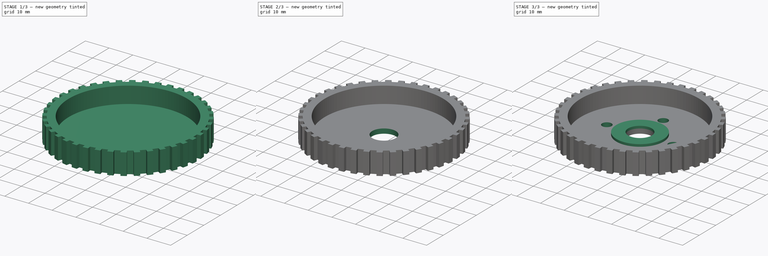
[diagram: build sequence overview — one tinted view per stage of 3, left to right]
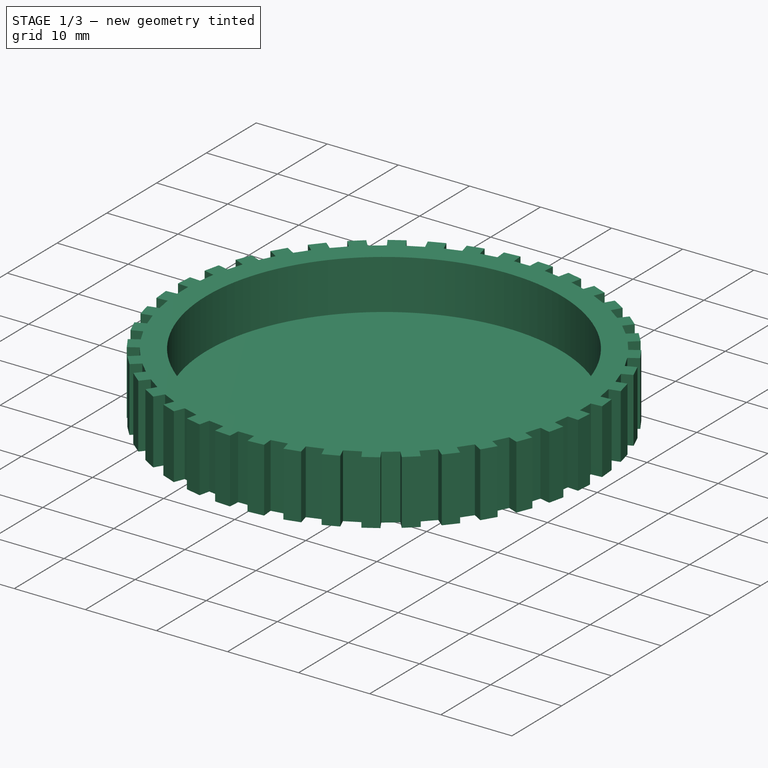
[diagram: stage 1 of 3 — iso view after this stage's code; geometry added in this stage tinted green]
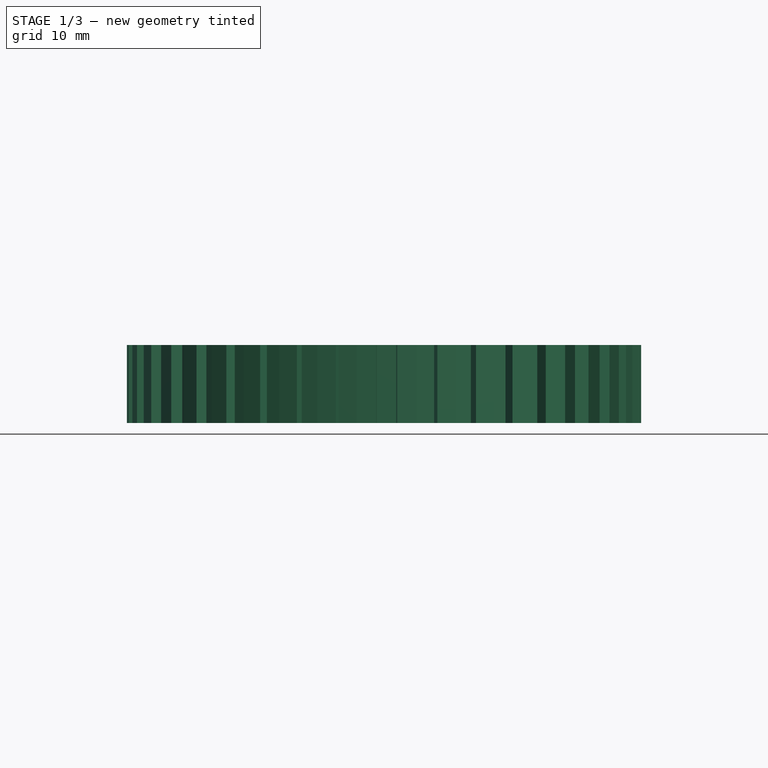
[diagram: stage 1 of 3 — front view after this stage's code; geometry added in this stage tinted green]
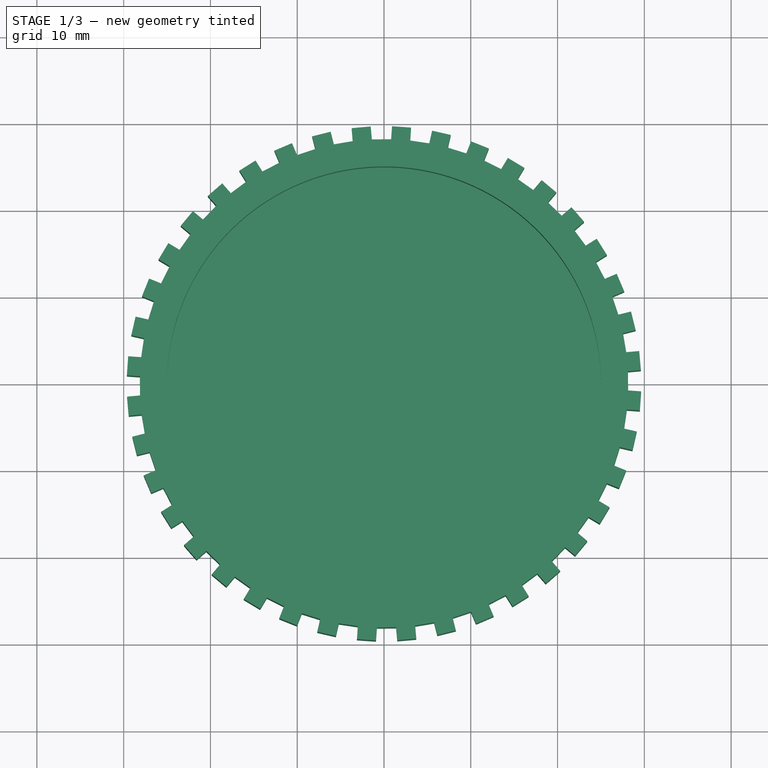
[diagram: stage 1 of 3 — top view after this stage's code; geometry added in this stage tinted green]
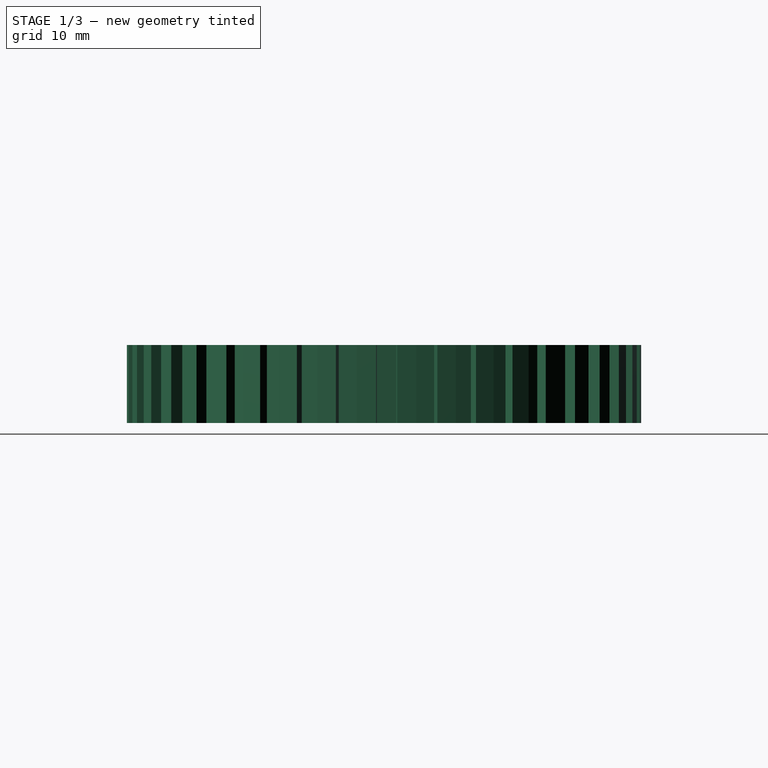
[diagram: stage 1 of 3 — right view after this stage's code; geometry added in this stage tinted green]
FCSTD DOCUMENT  (FreeCAD 0.19R24276 (Git))
Label: G1_d56_40t_from_p8
License: All rights reserved
LicenseURL: http://en.wikipedia.org/wiki/All_rights_reserved
objects: Sketcher::SketchObject×5, PartDesign::Pocket×3, PartDesign::Pad×2, PartDesign::Body×1
note: 16 computed .brp shape members not serialized (recipe doc carries the construction recipe); baked Part::Feature solids carry a one-line shape summary decoded from their .brp

FEATURE [Sketcher::SketchObject] Sketch
  FullyConstrained = false
  MapMode = 5
  Support = -> [XY_Plane]
  sketch-geometry (281):
    g0: Circle CenterX=0 CenterY=0 CenterZ=0 NormalX=0 NormalY=0 NormalZ=1 AngleXU=0 Radius=28.1239
    g1: LineSegment StartX=-25.682 StartY=11.5162 StartZ=0 EndX=-26.503 EndY=9.47509 EndZ=0
    g2: LineSegment StartX=-26.503 StartY=9.47509 StartZ=0 EndX=-27.8947 EndY=10.0349 EndZ=0
    g3: LineSegment StartX=-27.8947 StartY=10.0349 StartZ=0 EndX=-27.0736 EndY=12.0759 EndZ=0
    g4: LineSegment StartX=-27.0736 StartY=12.0759 StartZ=0 EndX=-25.682 EndY=11.5162 EndZ=0
    g5: GeomPoint X=-26.0925 Y=10.4956 Z=0
    g6: LineSegment StartX=-27.1673 StartY=7.35682 StartZ=0 EndX=-27.659 EndY=5.21245 EndZ=0
    g7: LineSegment StartX=-27.659 StartY=5.21245 StartZ=0 EndX=-29.121 EndY=5.54764 EndZ=0
    g8: LineSegment StartX=-29.121 StartY=5.54764 StartZ=0 EndX=-28.6294 EndY=7.69201 EndZ=0
    g9: LineSegment StartX=-28.6294 StartY=7.69201 StartZ=0 EndX=-27.1673 EndY=7.35682 EndZ=0
    g10: GeomPoint X=-27.4132 Y=6.28463 Z=0
    g11: LineSegment StartX=0 StartY=0 StartZ=0 EndX=-27.4132 EndY=6.28463 EndZ=0
    g12: LineSegment StartX=-26.0925 StartY=10.4956 StartZ=0 EndX=0 EndY=0 EndZ=0
    g13: LineSegment StartX=0 StartY=0 StartZ=0 EndX=-11.0287 EndY=25.8717 EndZ=0
    g14: LineSegment StartX=-5.77874 StartY=27.5462 StartZ=0 EndX=-7.91258 EndY=27.0107 EndZ=0
    g15: LineSegment StartX=-7.91258 StartY=27.0107 StartZ=0 EndX=-8.27769 EndY=28.4656 EndZ=0
    g16: LineSegment StartX=-8.27769 StartY=28.4656 StartZ=0 EndX=-6.14386 EndY=29.0011 EndZ=0
    g17: LineSegment StartX=-6.14386 StartY=29.0011 StartZ=0 EndX=-5.77874 EndY=27.5462 EndZ=0
    g18: GeomPoint X=-6.84566 Y=27.2785 Z=0
    g19: LineSegment StartX=-10.0168 StartY=26.3031 StartZ=0 EndX=-12.0406 EndY=25.4404 EndZ=0
    g20: LineSegment StartX=-12.0406 StartY=25.4404 StartZ=0 EndX=-12.6288 EndY=26.8202 EndZ=0
    g21: LineSegment StartX=-12.6288 StartY=26.8202 StartZ=0 EndX=-10.605 EndY=27.6829 EndZ=0
    g22: LineSegment StartX=-10.605 StartY=27.6829 StartZ=0 EndX=-10.0168 EndY=26.3031 EndZ=0
    g23: GeomPoint X=-11.0287 Y=25.8717 Z=0
    g24: LineSegment StartX=-15.8721 StartY=23.2436 StartZ=0 EndX=-14.0082 EndY=24.4123 EndZ=0
    g25: LineSegment StartX=-14.0082 StartY=24.4123 StartZ=0 EndX=-14.805 EndY=25.6831 EndZ=0
    g26: LineSegment StartX=-14.805 StartY=25.6831 StartZ=0 EndX=-16.6689 EndY=24.5144 EndZ=0
    g27: LineSegment StartX=-16.6689 StartY=24.5144 StartZ=0 EndX=-15.8721 EndY=23.2436 EndZ=0
    g28: GeomPoint X=-14.9401 Y=23.8279 Z=0
    g29: LineSegment StartX=-24.6945 StartY=13.5044 StartZ=0 EndX=-23.5643 EndY=15.3919 EndZ=0
    g30: LineSegment StartX=-23.5643 StartY=15.3919 StartZ=0 EndX=-24.8512 EndY=16.1625 EndZ=0
    g31: LineSegment StartX=-24.8512 StartY=16.1625 StartZ=0 EndX=-25.9814 EndY=14.275 EndZ=0
    g32: LineSegment StartX=-25.9814 StartY=14.275 StartZ=0 EndX=-24.6945 EndY=13.5044 EndZ=0
    g33: GeomPoint X=-24.1294 Y=14.4482 Z=0
    g34: LineSegment StartX=-22.2779 StartY=17.2012 StartZ=0 EndX=-20.8664 EndY=18.8887 EndZ=0
    g35: LineSegment StartX=-20.8664 StartY=18.8887 StartZ=0 EndX=-22.0169 EndY=19.8511 EndZ=0
    g36: LineSegment StartX=-22.0169 StartY=19.8511 StartZ=0 EndX=-23.4285 EndY=18.1637 EndZ=0
    g37: LineSegment StartX=-23.4285 StartY=18.1637 StartZ=0 EndX=-22.2779 EndY=17.2012 EndZ=0
    g38: GeomPoint X=-21.5721 Y=18.045 Z=0
    g39: LineSegment StartX=-17.6546 StartY=21.9204 StartZ=0 EndX=-19.3128 EndY=20.4745 EndZ=0
    g40: LineSegment StartX=-19.3128 StartY=20.4745 StartZ=0 EndX=-20.2986 EndY=21.605 EndZ=0
    g41: LineSegment StartX=-20.2986 StartY=21.605 StartZ=0 EndX=-18.6404 EndY=23.0509 EndZ=0
    g42: LineSegment StartX=-18.6404 StartY=23.0509 StartZ=0 EndX=-17.6546 EndY=21.9204 EndZ=0
    g43: GeomPoint X=-18.4837 Y=21.1974 Z=0
    g44: LineSegment StartX=0 StartY=0 StartZ=0 EndX=-14.9401 EndY=23.8279 EndZ=0
    g45: LineSegment StartX=0 StartY=0 StartZ=0 EndX=-18.4837 EndY=21.1974 EndZ=0
    g46: LineSegment StartX=0 StartY=0 StartZ=0 EndX=-21.5721 EndY=18.045 EndZ=0
    g47: LineSegment StartX=-24.1294 StartY=14.4482 StartZ=0 EndX=0 EndY=0 EndZ=0
    g48: LineSegment StartX=-6.84566 StartY=27.2785 StartZ=0 EndX=0 EndY=0 EndZ=0
    g49: LineSegment StartX=27.9837 StartY=-3.01633 StartZ=0 EndX=28.1338 EndY=-0.821461 EndZ=0
    g50: LineSegment StartX=28.1338 StartY=-0.821461 StartZ=0 EndX=29.6303 EndY=-0.923805 EndZ=0
    g51: LineSegment StartX=29.6303 StartY=-0.923805 StartZ=0 EndX=29.4802 EndY=-3.11868 EndZ=0
    g52: LineSegment StartX=29.4802 StartY=-3.11868 StartZ=0 EndX=27.9837 EndY=-3.01633 EndZ=0
    g53: GeomPoint X=28.0588 Y=-1.9189 Z=0
    g54: LineSegment StartX=28.1111 StartY=1.39842 StartZ=0 EndX=27.916 EndY=3.58975 EndZ=0
    g55: LineSegment StartX=27.916 StartY=3.58975 StartZ=0 EndX=29.4101 EndY=3.72278 EndZ=0
    g56: LineSegment StartX=29.4101 StartY=3.72278 StartZ=0 EndX=29.6052 EndY=1.53144 EndZ=0
    g57: LineSegment StartX=29.6052 StartY=1.53144 StartZ=0 EndX=28.1111 EndY=1.39842 EndZ=0
    g58: GeomPoint X=28.0135 Y=2.49409 Z=0
    g59: LineSegment StartX=27.0107 StartY=7.91258 StartZ=0 EndX=27.5462 EndY=5.77874 EndZ=0
    g60: LineSegment StartX=27.5462 StartY=5.77874 StartZ=0 EndX=29.0011 EndY=6.14386 EndZ=0
    g61: LineSegment StartX=29.0011 StartY=6.14386 StartZ=0 EndX=28.4656 EndY=8.27769 EndZ=0
    g62: LineSegment StartX=28.4656 StartY=8.27769 StartZ=0 EndX=27.0107 EndY=7.91258 EndZ=0
    g63: GeomPoint X=27.2785 Y=6.84566 Z=0
    g64: LineSegment StartX=20.4745 StartY=19.3128 StartZ=0 EndX=21.9204 EndY=17.6546 EndZ=0
    g65: LineSegment StartX=21.9204 StartY=17.6546 StartZ=0 EndX=23.0509 EndY=18.6404 EndZ=0
    g66: LineSegment StartX=23.0509 StartY=18.6404 StartZ=0 EndX=21.605 EndY=20.2986 EndZ=0
    g67: LineSegment StartX=21.605 StartY=20.2986 StartZ=0 EndX=20.4745 EndY=19.3128 EndZ=0
    g68: GeomPoint X=21.1974 Y=18.4837 Z=0
    g69: LineSegment StartX=23.2436 StartY=15.8721 StartZ=0 EndX=24.4123 EndY=14.0082 EndZ=0
    g70: LineSegment StartX=24.4123 StartY=14.0082 StartZ=0 EndX=25.6831 EndY=14.805 EndZ=0
    g71: LineSegment StartX=25.6831 StartY=14.805 StartZ=0 EndX=24.5144 EndY=16.6689 EndZ=0
    g72: LineSegment StartX=24.5144 StartY=16.6689 StartZ=0 EndX=23.2436 EndY=15.8721 EndZ=0
    g73: GeomPoint X=23.8279 Y=14.9401 Z=0
    g74: LineSegment StartX=26.3031 StartY=10.0168 StartZ=0 EndX=25.4404 EndY=12.0406 EndZ=0
    g75: LineSegment StartX=25.4404 StartY=12.0406 StartZ=0 EndX=26.8202 EndY=12.6288 EndZ=0
    g76: LineSegment StartX=26.8202 StartY=12.6288 StartZ=0 EndX=27.6829 EndY=10.605 EndZ=0
    g77: LineSegment StartX=27.6829 StartY=10.605 StartZ=0 EndX=26.3031 EndY=10.0168 EndZ=0
    g78: GeomPoint X=25.8717 Y=11.0287 Z=0
    g79: LineSegment StartX=-3.58975 StartY=27.916 StartZ=0 EndX=-1.39842 EndY=28.1111 EndZ=0
    g80: LineSegment StartX=-1.39842 StartY=28.1111 StartZ=0 EndX=-1.53144 EndY=29.6052 EndZ=0
    g81: LineSegment StartX=-1.53144 StartY=29.6052 StartZ=0 EndX=-3.72278 EndY=29.4101 EndZ=0
    g82: LineSegment StartX=-3.72278 StartY=29.4101 StartZ=0 EndX=-3.58975 EndY=27.916 EndZ=0
    g83: GeomPoint X=-2.49409 Y=28.0135 Z=0
    g84: LineSegment StartX=0.821461 StartY=28.1338 StartZ=0 EndX=3.01633 EndY=27.9837 EndZ=0
    g85: LineSegment StartX=3.01633 StartY=27.9837 StartZ=0 EndX=3.11868 EndY=29.4802 EndZ=0
    g86: LineSegment StartX=3.11868 StartY=29.4802 StartZ=0 EndX=0.923805 EndY=29.6303 EndZ=0
    g87: LineSegment StartX=0.923805 StartY=29.6303 StartZ=0 EndX=0.821461 EndY=28.1338 EndZ=0
    g88: GeomPoint X=1.9189 Y=28.0588 Z=0
    g89: LineSegment StartX=7.35682 StartY=27.1673 StartZ=0 EndX=5.21245 EndY=27.659 EndZ=0
    g90: LineSegment StartX=5.21245 StartY=27.659 StartZ=0 EndX=5.54764 EndY=29.121 EndZ=0
    g91: LineSegment StartX=5.54764 StartY=29.121 StartZ=0 EndX=7.69201 EndY=28.6294 EndZ=0
    g92: LineSegment StartX=7.69201 StartY=28.6294 StartZ=0 EndX=7.35682 EndY=27.1673 EndZ=0
    g93: GeomPoint X=6.28463 Y=27.4132 Z=0
    g94: LineSegment StartX=18.8887 StartY=20.8664 StartZ=0 EndX=17.2012 EndY=22.2779 EndZ=0
    g95: LineSegment StartX=17.2012 StartY=22.2779 StartZ=0 EndX=18.1637 EndY=23.4285 EndZ=0
    g96: LineSegment StartX=18.1637 StartY=23.4285 StartZ=0 EndX=19.8511 EndY=22.0169 EndZ=0
    g97: LineSegment StartX=19.8511 StartY=22.0169 StartZ=0 EndX=18.8887 EndY=20.8664 EndZ=0
    g98: GeomPoint X=18.045 Y=21.5721 Z=0
    g99: LineSegment StartX=15.3919 StartY=23.5643 StartZ=0 EndX=13.5044 EndY=24.6945 EndZ=0
    g100: LineSegment StartX=13.5044 StartY=24.6945 StartZ=0 EndX=14.275 EndY=25.9814 EndZ=0
    g101: LineSegment StartX=14.275 StartY=25.9814 StartZ=0 EndX=16.1625 EndY=24.8512 EndZ=0
    g102: LineSegment StartX=16.1625 StartY=24.8512 StartZ=0 EndX=15.3919 EndY=23.5643 EndZ=0
    g103: GeomPoint X=14.4482 Y=24.1294 Z=0
    g104: LineSegment StartX=9.47509 StartY=26.503 StartZ=0 EndX=11.5162 EndY=25.682 EndZ=0
    g105: LineSegment StartX=11.5162 StartY=25.682 StartZ=0 EndX=12.0759 EndY=27.0736 EndZ=0
    g106: LineSegment StartX=12.0759 StartY=27.0736 StartZ=0 EndX=10.0349 EndY=27.8947 EndZ=0
    g107: LineSegment StartX=10.0349 StartY=27.8947 StartZ=0 EndX=9.47509 EndY=26.503 EndZ=0
    g108: GeomPoint X=10.4956 Y=26.0925 Z=0
    g109: LineSegment StartX=0 StartY=0 StartZ=0 EndX=28.0588 EndY=-1.9189 EndZ=0
    g110: LineSegment StartX=0 StartY=0 StartZ=0 EndX=28.0135 EndY=2.49409 EndZ=0
    g111: LineSegment StartX=0 StartY=0 StartZ=0 EndX=27.2785 EndY=6.84566 EndZ=0
    g112: LineSegment StartX=0 StartY=0 StartZ=0 EndX=23.8279 EndY=14.9401 EndZ=0
    g113: LineSegment StartX=0 StartY=0 StartZ=0 EndX=25.8717 EndY=11.0287 EndZ=0
    g114: LineSegment StartX=21.1974 StartY=18.4837 StartZ=0 EndX=0 EndY=0 EndZ=0
    g115: LineSegment StartX=0 StartY=0 StartZ=0 EndX=10.4956 EndY=26.0925 EndZ=0
    g116: LineSegment StartX=0 StartY=0 StartZ=0 EndX=14.4482 EndY=24.1294 EndZ=0
    g117: LineSegment StartX=18.045 StartY=21.5721 StartZ=0 EndX=0 EndY=0 EndZ=0
    g118: LineSegment StartX=0 StartY=0 StartZ=0 EndX=1.9189 EndY=28.0588 EndZ=0
    g119: LineSegment StartX=0 StartY=0 StartZ=0 EndX=6.28463 EndY=27.4132 EndZ=0
    g120: LineSegment StartX=-2.49409 StartY=28.0135 StartZ=0 EndX=0 EndY=0 EndZ=0
    g121: LineSegment StartX=-27.916 StartY=-3.58975 StartZ=0 EndX=-28.1111 EndY=-1.39842 EndZ=0
    g122: LineSegment StartX=-28.1111 StartY=-1.39842 StartZ=0 EndX=-29.6052 EndY=-1.53144 EndZ=0
    g123: LineSegment StartX=-29.6052 StartY=-1.53144 StartZ=0 EndX=-29.4101 EndY=-3.72278 EndZ=0
    g124: LineSegment StartX=-29.4101 StartY=-3.72278 StartZ=0 EndX=-27.916 EndY=-3.58975 EndZ=0
    g125: GeomPoint X=-28.0135 Y=-2.49409 Z=0
    g126: LineSegment StartX=-28.1338 StartY=0.821461 StartZ=0 EndX=-27.9837 EndY=3.01633 EndZ=0
    g127: LineSegment StartX=-27.9837 StartY=3.01633 StartZ=0 EndX=-29.4802 EndY=3.11868 EndZ=0
    g128: LineSegment StartX=-29.4802 StartY=3.11868 StartZ=0 EndX=-29.6303 EndY=0.923805 EndZ=0
    g129: LineSegment StartX=-29.6303 StartY=0.923805 StartZ=0 EndX=-28.1338 EndY=0.821461 EndZ=0
    g130: GeomPoint X=-28.0588 Y=1.9189 Z=0
    g131: LineSegment StartX=0 StartY=0 StartZ=0 EndX=-28.0588 EndY=1.9189 EndZ=0
    g132: LineSegment StartX=-28.0135 StartY=-2.49409 StartZ=0 EndX=0 EndY=0 EndZ=0
    g133: LineSegment StartX=0 StartY=0 StartZ=0 EndX=-18.045 EndY=-21.5721 EndZ=0
    g134: LineSegment StartX=-13.5044 StartY=-24.6945 StartZ=0 EndX=-15.3919 EndY=-23.5643 EndZ=0
    g135: LineSegment StartX=-15.3919 StartY=-23.5643 StartZ=0 EndX=-16.1625 EndY=-24.8512 EndZ=0
    g136: LineSegment StartX=-16.1625 StartY=-24.8512 StartZ=0 EndX=-14.275 EndY=-25.9814 EndZ=0
    g137: LineSegment StartX=-14.275 StartY=-25.9814 StartZ=0 EndX=-13.5044 EndY=-24.6945 EndZ=0
    g138: GeomPoint X=-14.4482 Y=-24.1294 Z=0
    g139: LineSegment StartX=-17.2012 StartY=-22.2779 StartZ=0 EndX=-18.8887 EndY=-20.8664 EndZ=0
    g140: LineSegment StartX=-18.8887 StartY=-20.8664 StartZ=0 EndX=-19.8511 EndY=-22.0169 EndZ=0
    g141: LineSegment StartX=-19.8511 StartY=-22.0169 StartZ=0 EndX=-18.1637 EndY=-23.4285 EndZ=0
    g142: LineSegment StartX=-18.1637 StartY=-23.4285 StartZ=0 EndX=-17.2012 EndY=-22.2779 EndZ=0
    g143: GeomPoint X=-18.045 Y=-21.5721 Z=0
    g144: LineSegment StartX=-21.9204 StartY=-17.6546 StartZ=0 EndX=-20.4745 EndY=-19.3128 EndZ=0
    g145: LineSegment StartX=-20.4745 StartY=-19.3128 StartZ=0 EndX=-21.605 EndY=-20.2986 EndZ=0
    g146: LineSegment StartX=-21.605 StartY=-20.2986 StartZ=0 EndX=-23.0509 EndY=-18.6404 EndZ=0
    g147: LineSegment StartX=-23.0509 StartY=-18.6404 StartZ=0 EndX=-21.9204 EndY=-17.6546 EndZ=0
    g148: GeomPoint X=-21.1974 Y=-18.4837 Z=0
    g149: LineSegment StartX=-27.5462 StartY=-5.77874 StartZ=0 EndX=-27.0107 EndY=-7.91258 EndZ=0
    g150: LineSegment StartX=-27.0107 StartY=-7.91258 StartZ=0 EndX=-28.4656 EndY=-8.27769 EndZ=0
    g151: LineSegment StartX=-28.4656 StartY=-8.27769 StartZ=0 EndX=-29.0011 EndY=-6.14386 EndZ=0
    g152: LineSegment StartX=-29.0011 StartY=-6.14386 StartZ=0 EndX=-27.5462 EndY=-5.77874 EndZ=0
    g153: GeomPoint X=-27.2785 Y=-6.84566 Z=0
    g154: LineSegment StartX=-26.3031 StartY=-10.0168 StartZ=0 EndX=-25.4404 EndY=-12.0406 EndZ=0
    g155: LineSegment StartX=-25.4404 StartY=-12.0406 StartZ=0 EndX=-26.8202 EndY=-12.6288 EndZ=0
    g156: LineSegment StartX=-26.8202 StartY=-12.6288 StartZ=0 EndX=-27.6829 EndY=-10.605 EndZ=0
    g157: LineSegment StartX=-27.6829 StartY=-10.605 StartZ=0 EndX=-26.3031 EndY=-10.0168 EndZ=0
    g158: GeomPoint X=-25.8717 Y=-11.0287 Z=0
    g159: LineSegment StartX=-23.2436 StartY=-15.8721 StartZ=0 EndX=-24.4123 EndY=-14.0082 EndZ=0
    g160: LineSegment StartX=-24.4123 StartY=-14.0082 StartZ=0 EndX=-25.6831 EndY=-14.805 EndZ=0
    g161: LineSegment StartX=-25.6831 StartY=-14.805 StartZ=0 EndX=-24.5144 EndY=-16.6689 EndZ=0
    g162: LineSegment StartX=-24.5144 StartY=-16.6689 StartZ=0 EndX=-23.2436 EndY=-15.8721 EndZ=0
    g163: GeomPoint X=-23.8279 Y=-14.9401 Z=0
    g164: LineSegment StartX=0 StartY=0 StartZ=0 EndX=-21.1974 EndY=-18.4837 EndZ=0
    g165: LineSegment StartX=0 StartY=0 StartZ=0 EndX=-23.8279 EndY=-14.9401 EndZ=0
    g166: LineSegment StartX=0 StartY=0 StartZ=0 EndX=-25.8717 EndY=-11.0287 EndZ=0
    g167: LineSegment StartX=-27.2785 StartY=-6.84566 StartZ=0 EndX=0 EndY=0 EndZ=0
    g168: LineSegment StartX=-14.4482 StartY=-24.1294 StartZ=0 EndX=1.8e-15 EndY=0 EndZ=0
    g169: LineSegment StartX=27.659 StartY=-5.21245 StartZ=0 EndX=27.1673 EndY=-7.35682 EndZ=0
    g170: LineSegment StartX=27.1673 StartY=-7.35682 StartZ=0 EndX=28.6294 EndY=-7.69201 EndZ=0
    g171: LineSegment StartX=28.6294 StartY=-7.69201 StartZ=0 EndX=29.121 EndY=-5.54764 EndZ=0
    g172: LineSegment StartX=29.121 StartY=-5.54764 StartZ=0 EndX=27.659 EndY=-5.21245 EndZ=0
    g173: GeomPoint X=27.4132 Y=-6.28463 Z=0
    g174: LineSegment StartX=26.503 StartY=-9.47509 StartZ=0 EndX=25.682 EndY=-11.5162 EndZ=0
    g175: LineSegment StartX=25.682 StartY=-11.5162 StartZ=0 EndX=27.0736 EndY=-12.0759 EndZ=0
    g176: LineSegment StartX=27.0736 StartY=-12.0759 StartZ=0 EndX=27.8947 EndY=-10.0349 EndZ=0
    g177: LineSegment StartX=27.8947 StartY=-10.0349 StartZ=0 EndX=26.503 EndY=-9.47509 EndZ=0
    g178: GeomPoint X=26.0925 Y=-10.4956 Z=0
    g179: LineSegment StartX=23.5643 StartY=-15.3919 StartZ=0 EndX=24.6945 EndY=-13.5044 EndZ=0
    g180: LineSegment StartX=24.6945 StartY=-13.5044 StartZ=0 EndX=25.9814 EndY=-14.275 EndZ=0
    g181: LineSegment StartX=25.9814 StartY=-14.275 StartZ=0 EndX=24.8512 EndY=-16.1625 EndZ=0
    g182: LineSegment StartX=24.8512 StartY=-16.1625 StartZ=0 EndX=23.5643 EndY=-15.3919 EndZ=0
    g183: GeomPoint X=24.1294 Y=-14.4482 Z=0
    g184: LineSegment StartX=14.0082 StartY=-24.4123 StartZ=0 EndX=15.8721 EndY=-23.2436 EndZ=0
    g185: LineSegment StartX=15.8721 StartY=-23.2436 StartZ=0 EndX=16.6689 EndY=-24.5144 EndZ=0
    g186: LineSegment StartX=16.6689 StartY=-24.5144 StartZ=0 EndX=14.805 EndY=-25.6831 EndZ=0
    g187: LineSegment StartX=14.805 StartY=-25.6831 StartZ=0 EndX=14.0082 EndY=-24.4123 EndZ=0
    g188: GeomPoint X=14.9401 Y=-23.8279 Z=0
    g189: LineSegment StartX=17.6546 StartY=-21.9204 StartZ=0 EndX=19.3128 EndY=-20.4745 EndZ=0
    g190: LineSegment StartX=19.3128 StartY=-20.4745 StartZ=0 EndX=20.2986 EndY=-21.605 EndZ=0
    g191: LineSegment StartX=20.2986 StartY=-21.605 StartZ=0 EndX=18.6404 EndY=-23.0509 EndZ=0
    g192: LineSegment StartX=18.6404 StartY=-23.0509 StartZ=0 EndX=17.6546 EndY=-21.9204 EndZ=0
    g193: GeomPoint X=18.4837 Y=-21.1974 Z=0
    g194: LineSegment StartX=22.2779 StartY=-17.2012 StartZ=0 EndX=20.8664 EndY=-18.8887 EndZ=0
    g195: LineSegment StartX=20.8664 StartY=-18.8887 StartZ=0 EndX=22.0169 EndY=-19.8511 EndZ=0
    g196: LineSegment StartX=22.0169 StartY=-19.8511 StartZ=0 EndX=23.4285 EndY=-18.1637 EndZ=0
    g197: LineSegment StartX=23.4285 StartY=-18.1637 StartZ=0 EndX=22.2779 EndY=-17.2012 EndZ=0
    g198: GeomPoint X=21.5721 Y=-18.045 Z=0
    g199: LineSegment StartX=-11.5162 StartY=-25.682 StartZ=0 EndX=-9.47509 EndY=-26.503 EndZ=0
    g200: LineSegment StartX=-9.47509 StartY=-26.503 StartZ=0 EndX=-10.0349 EndY=-27.8947 EndZ=0
    g201: LineSegment StartX=-10.0349 StartY=-27.8947 StartZ=0 EndX=-12.0759 EndY=-27.0736 EndZ=0
    g202: LineSegment StartX=-12.0759 StartY=-27.0736 StartZ=0 EndX=-11.5162 EndY=-25.682 EndZ=0
    g203: GeomPoint X=-10.4956 Y=-26.0925 Z=0
    g204: LineSegment StartX=-7.35682 StartY=-27.1673 StartZ=0 EndX=-5.21245 EndY=-27.659 EndZ=0
    g205: LineSegment StartX=-5.21245 StartY=-27.659 StartZ=0 EndX=-5.54764 EndY=-29.121 EndZ=0
    g206: LineSegment StartX=-5.54764 StartY=-29.121 StartZ=0 EndX=-7.69201 EndY=-28.6294 EndZ=0
    g207: LineSegment StartX=-7.69201 StartY=-28.6294 StartZ=0 EndX=-7.35682 EndY=-27.1673 EndZ=0
    g208: GeomPoint X=-6.28463 Y=-27.4132 Z=0
    g209: LineSegment StartX=-0.821461 StartY=-28.1338 StartZ=0 EndX=-3.01633 EndY=-27.9837 EndZ=0
    g210: LineSegment StartX=-3.01633 StartY=-27.9837 StartZ=0 EndX=-3.11868 EndY=-29.4802 EndZ=0
    g211: LineSegment StartX=-3.11868 StartY=-29.4802 StartZ=0 EndX=-0.923805 EndY=-29.6303 EndZ=0
    g212: LineSegment StartX=-0.923805 StartY=-29.6303 StartZ=0 EndX=-0.821461 EndY=-28.1338 EndZ=0
    g213: GeomPoint X=-1.9189 Y=-28.0588 Z=0
    g214: LineSegment StartX=12.0406 StartY=-25.4404 StartZ=0 EndX=10.0168 EndY=-26.3031 EndZ=0
    g215: LineSegment StartX=10.0168 StartY=-26.3031 StartZ=0 EndX=10.605 EndY=-27.6829 EndZ=0
    g216: LineSegment StartX=10.605 StartY=-27.6829 StartZ=0 EndX=12.6288 EndY=-26.8202 EndZ=0
    g217: LineSegment StartX=12.6288 StartY=-26.8202 StartZ=0 EndX=12.0406 EndY=-25.4404 EndZ=0
    g218: GeomPoint X=11.0287 Y=-25.8717 Z=0
    g219: LineSegment StartX=7.91258 StartY=-27.0107 StartZ=0 EndX=5.77874 EndY=-27.5462 EndZ=0
    g220: LineSegment StartX=5.77874 StartY=-27.5462 StartZ=0 EndX=6.14386 EndY=-29.0011 EndZ=0
    g221: LineSegment StartX=6.14386 StartY=-29.0011 StartZ=0 EndX=8.27769 EndY=-28.4656 EndZ=0
    g222: LineSegment StartX=8.27769 StartY=-28.4656 StartZ=0 EndX=7.91258 EndY=-27.0107 EndZ=0
    g223: GeomPoint X=6.84566 Y=-27.2785 Z=0
    g224: LineSegment StartX=1.39842 StartY=-28.1111 StartZ=0 EndX=3.58975 EndY=-27.916 EndZ=0
    g225: LineSegment StartX=3.58975 StartY=-27.916 StartZ=0 EndX=3.72278 EndY=-29.4101 EndZ=0
    g226: LineSegment StartX=3.72278 StartY=-29.4101 StartZ=0 EndX=1.53144 EndY=-29.6052 EndZ=0
    g227: LineSegment StartX=1.53144 StartY=-29.6052 StartZ=0 EndX=1.39842 EndY=-28.1111 EndZ=0
    g228: GeomPoint X=2.49409 Y=-28.0135 Z=0
    g229: LineSegment StartX=0 StartY=0 StartZ=0 EndX=27.4132 EndY=-6.28463 EndZ=0
    g230: LineSegment StartX=0 StartY=0 StartZ=0 EndX=26.0925 EndY=-10.4956 EndZ=0
    g231: LineSegment StartX=0 StartY=0 StartZ=0 EndX=24.1294 EndY=-14.4482 EndZ=0
    g232: LineSegment StartX=0 StartY=0 StartZ=0 EndX=18.4837 EndY=-21.1974 EndZ=0
    g233: LineSegment StartX=0 StartY=0 StartZ=0 EndX=21.5721 EndY=-18.045 EndZ=0
    g234: LineSegment StartX=14.9401 StartY=-23.8279 StartZ=0 EndX=0 EndY=0 EndZ=0
    g235: LineSegment StartX=0 StartY=0 StartZ=0 EndX=2.49409 EndY=-28.0135 EndZ=0
    g236: LineSegment StartX=0 StartY=0 StartZ=0 EndX=6.84566 EndY=-27.2785 EndZ=0
    g237: LineSegment StartX=11.0287 StartY=-25.8717 StartZ=0 EndX=0 EndY=0 EndZ=0
    g238: LineSegment StartX=0 StartY=0 StartZ=0 EndX=-6.28463 EndY=-27.4132 EndZ=0
    g239: LineSegment StartX=0 StartY=0 StartZ=0 EndX=-1.9189 EndY=-28.0588 EndZ=0
    g240: LineSegment StartX=-10.4956 StartY=-26.0925 StartZ=0 EndX=0 EndY=0 EndZ=0
    g241: LineSegment StartX=11.5162 StartY=25.682 StartZ=0 EndX=13.5044 EndY=24.6945 EndZ=0
    g242: LineSegment StartX=15.3919 StartY=23.5643 StartZ=0 EndX=17.2012 EndY=22.2779 EndZ=0
    g243: LineSegment StartX=18.8887 StartY=20.8664 StartZ=0 EndX=20.4745 EndY=19.3128 EndZ=0
    g244: LineSegment StartX=21.9204 StartY=17.6546 StartZ=0 EndX=23.2436 EndY=15.8721 EndZ=0
    g245: LineSegment StartX=24.4123 StartY=14.0082 StartZ=0 EndX=25.4404 EndY=12.0406 EndZ=0
    g246: LineSegment StartX=26.3031 StartY=10.0168 StartZ=0 EndX=27.0107 EndY=7.91258 EndZ=0
    g247: LineSegment StartX=27.5462 StartY=5.77874 StartZ=0 EndX=27.916 EndY=3.58975 EndZ=0
    g248: LineSegment StartX=28.1111 StartY=1.39842 StartZ=0 EndX=28.1338 EndY=-0.821461 EndZ=0
    g249: LineSegment StartX=27.9837 StartY=-3.01633 StartZ=0 EndX=27.659 EndY=-5.21245 EndZ=0
    g250: LineSegment StartX=27.1673 StartY=-7.35682 StartZ=0 EndX=26.503 EndY=-9.47509 EndZ=0
    g251: LineSegment StartX=25.682 StartY=-11.5162 StartZ=0 EndX=24.6945 EndY=-13.5044 EndZ=0
    g252: LineSegment StartX=23.5643 StartY=-15.3919 StartZ=0 EndX=22.2779 EndY=-17.2012 EndZ=0
    g253: LineSegment StartX=20.8664 StartY=-18.8887 StartZ=0 EndX=19.3128 EndY=-20.4745 EndZ=0
    g254: LineSegment StartX=17.6546 StartY=-21.9204 StartZ=0 EndX=15.8721 EndY=-23.2436 EndZ=0
    g255: LineSegment StartX=14.0082 StartY=-24.4123 StartZ=0 EndX=12.0406 EndY=-25.4404 EndZ=0
    g256: LineSegment StartX=10.0168 StartY=-26.3031 StartZ=0 EndX=7.91258 EndY=-27.0107 EndZ=0
    g257: LineSegment StartX=5.77874 StartY=-27.5462 StartZ=0 EndX=3.58975 EndY=-27.916 EndZ=0
    g258: LineSegment StartX=1.39842 StartY=-28.1111 StartZ=0 EndX=-0.821461 EndY=-28.1338 EndZ=0
    g259: LineSegment StartX=-3.01633 StartY=-27.9837 StartZ=0 EndX=-5.21245 EndY=-27.659 EndZ=0
    g260: LineSegment StartX=-7.35682 StartY=-27.1673 StartZ=0 EndX=-9.47509 EndY=-26.503 EndZ=0
    g261: LineSegment StartX=-11.5162 StartY=-25.682 StartZ=0 EndX=-13.5044 EndY=-24.6945 EndZ=0
    g262: LineSegment StartX=-15.3919 StartY=-23.5643 StartZ=0 EndX=-17.2012 EndY=-22.2779 EndZ=0
    g263: LineSegment StartX=-18.8887 StartY=-20.8664 StartZ=0 EndX=-20.4745 EndY=-19.3128 EndZ=0
    g264: LineSegment StartX=-21.9204 StartY=-17.6546 StartZ=0 EndX=-23.2436 EndY=-15.8721 EndZ=0
    g265: LineSegment StartX=-24.4123 StartY=-14.0082 StartZ=0 EndX=-25.4404 EndY=-12.0406 EndZ=0
    g266: LineSegment StartX=-26.3031 StartY=-10.0168 StartZ=0 EndX=-27.0107 EndY=-7.91258 EndZ=0
    g267: LineSegment StartX=-27.5462 StartY=-5.77874 StartZ=0 EndX=-27.916 EndY=-3.58975 EndZ=0
    g268: LineSegment StartX=-28.1111 StartY=-1.39842 StartZ=0 EndX=-28.1338 EndY=0.821461 EndZ=0
    g269: LineSegment StartX=-27.9837 StartY=3.01633 StartZ=0 EndX=-27.659 EndY=5.21245 EndZ=0
    g270: LineSegment StartX=-27.1673 StartY=7.35682 StartZ=0 EndX=-26.503 EndY=9.47509 EndZ=0
    g271: LineSegment StartX=-25.682 StartY=11.5162 StartZ=0 EndX=-24.6945 EndY=13.5044 EndZ=0
    g272: LineSegment StartX=-23.5643 StartY=15.3919 StartZ=0 EndX=-22.2779 EndY=17.2012 EndZ=0
    g273: LineSegment StartX=-20.8664 StartY=18.8887 StartZ=0 EndX=-19.3128 EndY=20.4745 EndZ=0
    g274: LineSegment StartX=-17.6546 StartY=21.9204 StartZ=0 EndX=-15.8721 EndY=23.2436 EndZ=0
    g275: LineSegment StartX=-10.0168 StartY=26.3031 StartZ=0 EndX=-7.91258 EndY=27.0107 EndZ=0
    g276: LineSegment StartX=-5.77874 StartY=27.5462 StartZ=0 EndX=-3.58975 EndY=27.916 EndZ=0
    g277: LineSegment StartX=-1.39842 StartY=28.1111 StartZ=0 EndX=0.821461 EndY=28.1338 EndZ=0
    g278: LineSegment StartX=3.01633 StartY=27.9837 StartZ=0 EndX=5.21245 EndY=27.659 EndZ=0
    g279: LineSegment StartX=7.35682 StartY=27.1673 StartZ=0 EndX=9.47509 EndY=26.503 EndZ=0
    g280: LineSegment StartX=-14.0082 StartY=24.4123 StartZ=0 EndX=-12.0406 EndY=25.4404 EndZ=0
  constraints (721):
    c: Coincident(g0,g-1)
    c: Coincident(g2,g1)
    c: Coincident(g3,g2)
    c: Coincident(g4,g3)
    c: Coincident(g4,g1)
    c: Equal(g1,g3)
    c: Parallel(g2,g4)
    c: Perpendicular(g2,g1)
    c: PointOnObject(g5,g1)
    c: Distance(g5,g1) = 1.1
    c: Distance(g1,g1) = 2.2
    c: Distance(g1,g2) = 1.5
    c: Coincident(g7,g6)
    c: Coincident(g8,g7)
    c: Coincident(g9,g8)
    c: Coincident(g9,g6)
    c: Equal(g6,g8)
    c: Parallel(g7,g9)
    c: Perpendicular(g7,g6)
    c: PointOnObject(g10,g6)
    c: Distance(g10,g6) = 1.1
    c: Equal(g1,g6) = 2.2
    c: Distance(g6,g7) = 1.5
    c: Coincident(g10,g11)
    c: Perpendicular(g11,g6)
    c: Distance(g1,g6) = 2.22
    c: Coincident(g11,g0)
    c: Coincident(g12,g5)
    c: Coincident(g12,g0)
    c: Perpendicular(g12,g1)
    c: Equal(g11,g12)
    c: Coincident(g15,g14)
    c: Coincident(g16,g15)
    c: Coincident(g17,g16)
    c: Coincident(g17,g14)
    c: Equal(g14,g16)
    c: Parallel(g15,g17)
    c: Perpendicular(g15,g14)
    c: PointOnObject(g18,g14)
    c: Distance(g18,g14) = 1.1
    c: Distance(g14,g14) = 2.2
    c: Distance(g14,g15) = 1.5
    c: Coincident(g20,g19)
    c: Coincident(g21,g20)
    c: Coincident(g22,g21)
    c: Coincident(g22,g19)
    c: Equal(g19,g21)
    c: Parallel(g20,g22)
    c: Perpendicular(g20,g19)
    c: PointOnObject(g23,g19)
    c: Distance(g23,g19) = 1.1
    c: Equal(g14,g19) = 2.2
    c: Distance(g19,g20) = 1.5
    c: Coincident(g23,g13)
    c: Perpendicular(g13,g19)
    c: Distance(g14,g19) = 2.22
    c: Coincident(g25,g24)
    c: Coincident(g26,g25)
    c: Coincident(g27,g26)
    c: Coincident(g27,g24)
    c: Equal(g24,g26)
    c: Parallel(g25,g27)
    c: Perpendicular(g25,g24)
    c: PointOnObject(g28,g24)
    c: Distance(g28,g24) = 1.1
    c: Distance(g24,g24) = 2.2
    c: Distance(g24,g25) = 1.5
    c: Coincident(g28,g44)
    c: Perpendicular(g44,g24)
    c: Coincident(g30,g29)
    c: Coincident(g31,g30)
    c: Coincident(g32,g31)
    c: Coincident(g32,g29)
    c: Equal(g29,g31)
    c: Parallel(g30,g32)
    c: Perpendicular(g30,g29)
    c: PointOnObject(g33,g29)
    c: Distance(g33,g29) = 1.1
    c: Distance(g29,g29) = 2.2
    c: Distance(g29,g30) = 1.5
    c: Coincident(g35,g34)
    c: Coincident(g36,g35)
    c: Coincident(g37,g36)
    c: Coincident(g37,g34)
    c: Equal(g34,g36)
    c: Parallel(g35,g37)
    c: Perpendicular(g35,g34)
    c: PointOnObject(g38,g34)
    c: Distance(g38,g34) = 1.1
    c: Equal(g29,g34) = 2.2
    c: Distance(g34,g35) = 1.5
    c: Coincident(g38,g46)
    c: Perpendicular(g46,g34)
    c: Distance(g29,g34) = 2.22
    c: Coincident(g40,g39)
    c: Coincident(g41,g40)
    c: Coincident(g42,g41)
    c: Coincident(g42,g39)
    c: Equal(g39,g41)
    c: Parallel(g40,g42)
    c: Perpendicular(g40,g39)
    c: PointOnObject(g43,g39)
    c: Distance(g43,g39) = 1.1
    c: Distance(g39,g39) = 2.2
    c: Distance(g39,g40) = 1.5
    c: Coincident(g43,g45)
    c: Perpendicular(g45,g39)
    c: Angle(g45,g44) = -0.15708
    c: Angle(g46,g45) = -0.15708
    c: Angle(g44,g13) = -0.15708
    c: Equal(g13,g44)
    c: Equal(g44,g45)
    c: Equal(g45,g46)
    c: Coincident(g47,g33)
    c: Perpendicular(g47,g29)
    c: Equal(g46,g47)
    c: Angle(g47,g12) = 0.15708
    c: Coincident(g47,g0)
    c: Coincident(g46,g0)
    c: Coincident(g44,g0)
    c: Coincident(g45,g0)
    c: Coincident(g13,g0)
    c: Equal(g12,g47)
    c: Coincident(g48,g18)
    c: Coincident(g48,g0)
    c: Equal(g13,g48)
    c: Perpendicular(g48,g14)
    c: Coincident(g50,g49)
    c: Coincident(g51,g50)
    c: Coincident(g52,g51)
    c: Coincident(g52,g49)
    c: Equal(g49,g51)
    c: Parallel(g50,g52)
    c: Perpendicular(g50,g49)
    c: PointOnObject(g53,g49)
    c: Distance(g53,g49) = 1.1
    c: Distance(g49,g49) = 2.2
    c: Distance(g49,g50) = 1.5
    c: Coincident(g53,g109)
    c: Perpendicular(g109,g49)
    c: Angle(g110,g109) = -0.15708
    c: Coincident(g55,g54)
    c: Coincident(g56,g55)
    c: Coincident(g57,g56)
    c: Coincident(g57,g54)
    c: Equal(g54,g56)
    c: Parallel(g55,g57)
    c: Perpendicular(g55,g54)
    c: PointOnObject(g58,g54)
    c: Distance(g58,g54) = 1.1
    c: Equal(g49,g54) = 2.2
    c: Distance(g54,g55) = 1.5
    c: Coincident(g58,g110)
    c: Perpendicular(g110,g54)
    c: Distance(g49,g54) = 2.22
    c: Coincident(g60,g59)
    c: Coincident(g61,g60)
    c: Coincident(g62,g61)
    c: Coincident(g62,g59)
    c: Equal(g59,g61)
    c: Parallel(g60,g62)
    c: Perpendicular(g60,g59)
    c: PointOnObject(g63,g59)
    c: Distance(g63,g59) = 1.1
    c: Distance(g59,g59) = 2.2
    c: Distance(g59,g60) = 1.5
    c: Coincident(g63,g111)
    c: Perpendicular(g111,g59)
    c: Coincident(g65,g64)
    c: Coincident(g66,g65)
    c: Coincident(g67,g66)
    c: Coincident(g67,g64)
    c: Equal(g64,g66)
    c: Parallel(g65,g67)
    c: Perpendicular(g65,g64)
    c: PointOnObject(g68,g64)
    c: Distance(g68,g64) = 1.1
    c: Distance(g64,g64) = 2.2
    c: Distance(g64,g65) = 1.5
    c: Coincident(g70,g69)
    c: Coincident(g71,g70)
    c: Coincident(g72,g71)
    c: Coincident(g72,g69)
    c: Equal(g69,g71)
    c: Parallel(g70,g72)
    c: Perpendicular(g70,g69)
    c: PointOnObject(g73,g69)
    c: Distance(g73,g69) = 1.1
    c: Equal(g64,g69) = 2.2
    c: Distance(g69,g70) = 1.5
    c: Coincident(g73,g112)
    c: Perpendicular(g112,g69)
    c: Distance(g64,g69) = 2.22
    c: Coincident(g75,g74)
    c: Coincident(g76,g75)
    c: Coincident(g77,g76)
    c: Coincident(g77,g74)
    c: Equal(g74,g76)
    c: Parallel(g75,g77)
    c: Perpendicular(g75,g74)
    c: PointOnObject(g78,g74)
    c: Distance(g78,g74) = 1.1
    c: Distance(g74,g74) = 2.2
    c: Distance(g74,g75) = 1.5
    c: Coincident(g78,g113)
    c: Perpendicular(g113,g74)
    c: Angle(g113,g111) = -0.15708
    c: Angle(g112,g113) = -0.15708
    c: Angle(g111,g110) = -0.15708
    c: Equal(g110,g111)
    c: Equal(g111,g113)
    c: Equal(g113,g112)
    c: Coincident(g114,g68)
    c: Perpendicular(g114,g64)
    c: Equal(g112,g114)
    c: Coincident(g80,g79)
    c: Coincident(g81,g80)
    c: Coincident(g82,g81)
    c: Coincident(g82,g79)
    c: Equal(g79,g81)
    c: Parallel(g80,g82)
    c: Perpendicular(g80,g79)
    c: PointOnObject(g83,g79)
    c: Distance(g83,g79) = 1.1
    c: Distance(g79,g79) = 2.2
    c: Distance(g79,g80) = 1.5
    c: Coincident(g85,g84)
    c: Coincident(g86,g85)
    c: Coincident(g87,g86)
    c: Coincident(g87,g84)
    c: Equal(g84,g86)
    c: Parallel(g85,g87)
    c: Perpendicular(g85,g84)
    c: PointOnObject(g88,g84)
    c: Distance(g88,g84) = 1.1
    c: Equal(g79,g84) = 2.2
    c: Distance(g84,g85) = 1.5
    c: Coincident(g88,g118)
    c: Perpendicular(g118,g84)
    c: Distance(g79,g84) = 2.22
    c: Coincident(g90,g89)
    c: Coincident(g91,g90)
    c: Coincident(g92,g91)
    c: Coincident(g92,g89)
    c: Equal(g89,g91)
    c: Parallel(g90,g92)
    c: Perpendicular(g90,g89)
    c: PointOnObject(g93,g89)
    c: Distance(g93,g89) = 1.1
    c: Distance(g89,g89) = 2.2
    c: Distance(g89,g90) = 1.5
    c: Coincident(g93,g119)
    c: Perpendicular(g119,g89)
    c: Coincident(g95,g94)
    c: Coincident(g96,g95)
    c: Coincident(g97,g96)
    c: Coincident(g97,g94)
    c: Equal(g94,g96)
    c: Parallel(g95,g97)
    c: Perpendicular(g95,g94)
    c: PointOnObject(g98,g94)
    c: Distance(g98,g94) = 1.1
    c: Distance(g94,g94) = 2.2
    c: Distance(g94,g95) = 1.5
    c: Coincident(g100,g99)
    c: Coincident(g101,g100)
    c: Coincident(g102,g101)
    c: Coincident(g102,g99)
    c: Equal(g99,g101)
    c: Parallel(g100,g102)
    c: Perpendicular(g100,g99)
    c: PointOnObject(g103,g99)
    c: Distance(g103,g99) = 1.1
    c: Equal(g94,g99) = 2.2
    c: Distance(g99,g100) = 1.5
    c: Coincident(g103,g116)
    c: Perpendicular(g116,g99)
    c: Coincident(g105,g104)
    c: Coincident(g106,g105)
    c: Coincident(g107,g106)
    c: Coincident(g107,g104)
    c: Equal(g104,g106)
    c: Parallel(g105,g107)
    c: Perpendicular(g105,g104)
    c: PointOnObject(g108,g104)
    c: Distance(g108,g104) = 1.1
    c: Distance(g104,g104) = 2.2
    c: Distance(g104,g105) = 1.5
    c: Coincident(g108,g115)
    c: Perpendicular(g115,g104)
    c: Angle(g115,g119) = 0.15708
    c: Angle(g116,g115) = 0.15708
    c: Angle(g119,g118) = 0.15708
    c: Equal(g118,g119)
    c: Equal(g119,g115)
    c: Equal(g115,g116)
    c: Coincident(g117,g98)
    c: Perpendicular(g117,g94)
    c: Equal(g116,g117)
    c: Angle(g117,g114) = -0.15708
    c: Equal(g114,g117)
    c: Coincident(g120,g83)
    c: Equal(g118,g120)
    c: Perpendicular(g120,g79)
    c: Angle(g120,g48) = 0.15708
    c: Coincident(g118,g0)
    c: Coincident(g120,g0)
    c: Coincident(g117,g0)
    c: Coincident(g111,g0)
    c: Coincident(g112,g0)
    c: Coincident(g113,g0)
    c: Coincident(g110,g0)
    c: Coincident(g109,g0)
    c: Coincident(g114,g119)
    c: Coincident(g114,g115)
    c: Coincident(g114,g116)
    c: Coincident(g114,g0)
    c: Equal(g48,g120)
    c: Equal(g109,g110)
    c: Coincident(g122,g121)
    c: Coincident(g123,g122)
    c: Coincident(g124,g123)
    c: Coincident(g124,g121)
    c: Equal(g121,g123)
    c: Parallel(g122,g124)
    c: Perpendicular(g122,g121)
    c: PointOnObject(g125,g121)
    c: Distance(g125,g121) = 1.1
    c: Distance(g121,g121) = 2.2
    c: Distance(g121,g122) = 1.5
    c: Coincident(g127,g126)
    c: Coincident(g128,g127)
    c: Coincident(g129,g128)
    c: Coincident(g129,g126)
    c: Equal(g126,g128)
    c: Parallel(g127,g129)
    c: Perpendicular(g127,g126)
    c: PointOnObject(g130,g126)
    c: Distance(g130,g126) = 1.1
    c: Equal(g121,g126) = 2.2
    c: Distance(g126,g127) = 1.5
    c: Coincident(g130,g131)
    c: Perpendicular(g131,g126)
    c: Distance(g121,g126) = 2.22
    c: Coincident(g132,g125)
    c: Perpendicular(g132,g121)
    c: Equal(g131,g132)
    c: Coincident(g135,g134)
    c: Coincident(g136,g135)
    c: Coincident(g137,g136)
    c: Coincident(g137,g134)
    c: Equal(g134,g136)
    c: Parallel(g135,g137)
    c: Perpendicular(g135,g134)
    c: PointOnObject(g138,g134)
    c: Distance(g138,g134) = 1.1
    c: Distance(g134,g134) = 2.2
    c: Distance(g134,g135) = 1.5
    c: Coincident(g140,g139)
    c: Coincident(g141,g140)
    c: Coincident(g142,g141)
    c: Coincident(g142,g139)
    c: Equal(g139,g141)
    c: Parallel(g140,g142)
    c: Perpendicular(g140,g139)
    c: PointOnObject(g143,g139)
    c: Distance(g143,g139) = 1.1
    c: Equal(g134,g139) = 2.2
    c: Distance(g139,g140) = 1.5
    c: Coincident(g143,g133)
    c: Perpendicular(g133,g139)
    c: Distance(g134,g139) = 2.22
    c: Coincident(g145,g144)
    c: Coincident(g146,g145)
    c: Coincident(g147,g146)
    c: Coincident(g147,g144)
    c: Equal(g144,g146)
    c: Parallel(g145,g147)
    c: Perpendicular(g145,g144)
    c: PointOnObject(g148,g144)
    c: Distance(g148,g144) = 1.1
    c: Distance(g144,g144) = 2.2
    c: Distance(g144,g145) = 1.5
    c: Coincident(g148,g164)
    c: Perpendicular(g164,g144)
    c: Coincident(g150,g149)
    c: Coincident(g151,g150)
    c: Coincident(g152,g151)
    c: Coincident(g152,g149)
    c: Equal(g149,g151)
    c: Parallel(g150,g152)
    c: Perpendicular(g150,g149)
    c: PointOnObject(g153,g149)
    c: Distance(g153,g149) = 1.1
    c: Distance(g149,g149) = 2.2
    c: Distance(g149,g150) = 1.5
    c: Coincident(g155,g154)
    c: Coincident(g156,g155)
    c: Coincident(g157,g156)
    c: Coincident(g157,g154)
    c: Equal(g154,g156)
    c: Parallel(g155,g157)
    c: Perpendicular(g155,g154)
    c: PointOnObject(g158,g154)
    c: Distance(g158,g154) = 1.1
    c: Equal(g149,g154) = 2.2
    c: Distance(g154,g155) = 1.5
    c: Coincident(g158,g166)
    c: Perpendicular(g166,g154)
    c: Distance(g149,g154) = 2.22
    c: Coincident(g160,g159)
    c: Coincident(g161,g160)
    c: Coincident(g162,g161)
    c: Coincident(g162,g159)
    c: Equal(g159,g161)
    c: Parallel(g160,g162)
    c: Perpendicular(g160,g159)
    c: PointOnObject(g163,g159)
    c: Distance(g163,g159) = 1.1
    c: Distance(g159,g159) = 2.2
    c: Distance(g159,g160) = 1.5
    c: Coincident(g163,g165)
    c: Perpendicular(g165,g159)
    c: Angle(g165,g164) = 0.15708
    c: Angle(g166,g165) = 0.15708
    c: Angle(g164,g133) = 0.15708
    c: Equal(g133,g164)
    c: Equal(g164,g165)
    c: Equal(g165,g166)
    c: Coincident(g167,g153)
    c: Perpendicular(g167,g149)
    c: Equal(g166,g167)
    c: Angle(g167,g132) = -0.15708
    c: Equal(g132,g167)
    c: Coincident(g168,g138)
    c: Equal(g133,g168)
    c: Perpendicular(g168,g134)
    c: Coincident(g170,g169)
    c: Coincident(g171,g170)
    c: Coincident(g172,g171)
    c: Coincident(g172,g169)
    c: Equal(g169,g171)
    c: Parallel(g170,g172)
    c: Perpendicular(g170,g169)
    c: PointOnObject(g173,g169)
    c: Distance(g173,g169) = 1.1
    c: Distance(g169,g169) = 2.2
    c: Distance(g169,g170) = 1.5
    c: Coincident(g173,g229)
    c: Perpendicular(g229,g169)
    c: Angle(g230,g229) = 0.15708
    c: Coincident(g175,g174)
    c: Coincident(g176,g175)
    c: Coincident(g177,g176)
    c: Coincident(g177,g174)
    c: Equal(g174,g176)
    c: Parallel(g175,g177)
    c: Perpendicular(g175,g174)
    c: PointOnObject(g178,g174)
    c: Distance(g178,g174) = 1.1
    c: Equal(g169,g174) = 2.2
    c: Distance(g174,g175) = 1.5
    c: Coincident(g178,g230)
    c: Perpendicular(g230,g174)
    c: Distance(g169,g174) = 2.22
    c: Coincident(g180,g179)
    c: Coincident(g181,g180)
    c: Coincident(g182,g181)
    c: Coincident(g182,g179)
    c: Equal(g179,g181)
    c: Parallel(g180,g182)
    c: Perpendicular(g180,g179)
    c: PointOnObject(g183,g179)
    c: Distance(g183,g179) = 1.1
    c: Distance(g179,g179) = 2.2
    c: Distance(g179,g180) = 1.5
    c: Coincident(g183,g231)
    c: Perpendicular(g231,g179)
    c: Coincident(g185,g184)
    c: Coincident(g186,g185)
    c: Coincident(g187,g186)
    c: Coincident(g187,g184)
    c: Equal(g184,g186)
    c: Parallel(g185,g187)
    c: Perpendicular(g185,g184)
    c: PointOnObject(g188,g184)
    c: Distance(g188,g184) = 1.1
    c: Distance(g184,g184) = 2.2
    c: Distance(g184,g185) = 1.5
    c: Coincident(g190,g189)
    c: Coincident(g191,g190)
    c: Coincident(g192,g191)
    c: Coincident(g192,g189)
    c: Equal(g189,g191)
    c: Parallel(g190,g192)
    c: Perpendicular(g190,g189)
    c: PointOnObject(g193,g189)
    c: Distance(g193,g189) = 1.1
    c: Equal(g184,g189) = 2.2
    c: Distance(g189,g190) = 1.5
    c: Coincident(g193,g232)
    c: Perpendicular(g232,g189)
    c: Distance(g184,g189) = 2.22
    c: Coincident(g195,g194)
    c: Coincident(g196,g195)
    c: Coincident(g197,g196)
    c: Coincident(g197,g194)
    c: Equal(g194,g196)
    c: Parallel(g195,g197)
    c: Perpendicular(g195,g194)
    c: PointOnObject(g198,g194)
    c: Distance(g198,g194) = 1.1
    c: Distance(g194,g194) = 2.2
    c: Distance(g194,g195) = 1.5
    c: Coincident(g198,g233)
    c: Perpendicular(g233,g194)
    c: Angle(g233,g231) = 0.15708
    c: Angle(g232,g233) = 0.15708
    c: Angle(g231,g230) = 0.15708
    c: Equal(g230,g231)
    c: Equal(g231,g233)
    c: Equal(g233,g232)
    c: Coincident(g234,g188)
    c: Perpendicular(g234,g184)
    c: Equal(g232,g234)
    c: Coincident(g200,g199)
    c: Coincident(g201,g200)
    c: Coincident(g202,g201)
    c: Coincident(g202,g199)
    c: Equal(g199,g201)
    c: Parallel(g200,g202)
    c: Perpendicular(g200,g199)
    c: PointOnObject(g203,g199)
    c: Distance(g203,g199) = 1.1
    c: Distance(g199,g199) = 2.2
    c: Distance(g199,g200) = 1.5
    c: Coincident(g205,g204)
    c: Coincident(g206,g205)
    c: Coincident(g207,g206)
    c: Coincident(g207,g204)
    c: Equal(g204,g206)
    c: Parallel(g205,g207)
    c: Perpendicular(g205,g204)
    c: PointOnObject(g208,g204)
    c: Distance(g208,g204) = 1.1
    c: Equal(g199,g204) = 2.2
    c: Distance(g204,g205) = 1.5
    c: Coincident(g208,g238)
    c: Perpendicular(g238,g204)
    c: Distance(g199,g204) = 2.22
    c: Coincident(g210,g209)
    c: Coincident(g211,g210)
    c: Coincident(g212,g211)
    c: Coincident(g212,g209)
    c: Equal(g209,g211)
    c: Parallel(g210,g212)
    c: Perpendicular(g210,g209)
    c: PointOnObject(g213,g209)
    c: Distance(g213,g209) = 1.1
    c: Distance(g209,g209) = 2.2
    c: Distance(g209,g210) = 1.5
    c: Coincident(g213,g239)
    c: Perpendicular(g239,g209)
    c: Coincident(g215,g214)
    c: Coincident(g216,g215)
    c: Coincident(g217,g216)
    c: Coincident(g217,g214)
    c: Equal(g214,g216)
    c: Parallel(g215,g217)
    c: Perpendicular(g215,g214)
    c: PointOnObject(g218,g214)
    c: Distance(g218,g214) = 1.1
    c: Distance(g214,g214) = 2.2
    c: Distance(g214,g215) = 1.5
    c: Coincident(g220,g219)
    c: Coincident(g221,g220)
    c: Coincident(g222,g221)
    c: Coincident(g222,g219)
    c: Equal(g219,g221)
    c: Parallel(g220,g222)
    c: Perpendicular(g220,g219)
    c: PointOnObject(g223,g219)
    c: Distance(g223,g219) = 1.1
    c: Equal(g214,g219) = 2.2
    c: Distance(g219,g220) = 1.5
    c: Coincident(g223,g236)
    c: Perpendicular(g236,g219)
    c: Distance(g214,g219) = 2.22
    c: Coincident(g225,g224)
    c: Coincident(g226,g225)
    c: Coincident(g227,g226)
    c: Coincident(g227,g224)
    c: Equal(g224,g226)
    c: Parallel(g225,g227)
    c: Perpendicular(g225,g224)
    c: PointOnObject(g228,g224)
    c: Distance(g228,g224) = 1.1
    c: Distance(g224,g224) = 2.2
    c: Distance(g224,g225) = 1.5
    c: Coincident(g228,g235)
    c: Perpendicular(g235,g224)
    c: Angle(g235,g239) = -0.15708
    c: Angle(g236,g235) = -0.15708
    c: Angle(g239,g238) = -0.15708
    c: Equal(g238,g239)
    c: Equal(g239,g235)
    c: Equal(g235,g236)
    c: Coincident(g237,g218)
    c: Perpendicular(g237,g214)
    c: Equal(g236,g237)
    c: Angle(g237,g234) = 0.15708
    c: Equal(g234,g237)
    c: Coincident(g240,g203)
    c: Equal(g238,g240)
    c: Perpendicular(g240,g199)
    c: Angle(g240,g168) = -0.15708
    c: Coincident(g234,g239)
    c: Coincident(g234,g235)
    c: Coincident(g234,g236)
    c: Equal(g168,g240)
    c: Equal(g229,g230)
    c: Angle(g229,g109) = 0.15708
    c: Coincident(g231,g237)
    c: Coincident(g231,g232)
    c: Coincident(g231,g229)
    c: Coincident(g231,g230)
    c: Coincident(g231,g233)
    c: Coincident(g231,g167)
    c: Coincident(g231,g133)
    c: Coincident(g231,g168)
    c: Coincident(g231,g164)
    c: Coincident(g231,g0)
    c: Coincident(g131,g0)
    c: Coincident(g238,g0)
    c: Coincident(g166,g0)
    c: Coincident(g132,g0)
    c: Coincident(g240,g234)
    c: Coincident(g240,g0)
    c: Coincident(g165,g0)
    c: Coincident(g241,g104)
    c: Coincident(g241,g99)
    c: Tangent(g241,g0)
    c: Coincident(g242,g102)
    c: Coincident(g242,g94)
    c: Tangent(g242,g0)
    c: Coincident(g243,g97)
    c: Coincident(g243,g64)
    c: Coincident(g244,g65)
    c: Coincident(g244,g72)
    c: Coincident(g245,g70)
    c: Coincident(g246,g77)
    c: Coincident(g245,g75)
    c: Coincident(g246,g62)
    c: Coincident(g247,g60)
    c: Coincident(g248,g57)
    c: Coincident(g247,g55)
    c: Coincident(g248,g50)
    c: Coincident(g249,g52)
    c: Coincident(g250,g170)
    c: Coincident(g249,g172)
    c: Coincident(g250,g174)
    c: Coincident(g251,g175)
    c: Coincident(g252,g182)
    c: Coincident(g251,g180)
    c: Coincident(g252,g194)
    c: Coincident(g253,g195)
    c: Coincident(g253,g190)
    c: Coincident(g254,g192)
    c: Coincident(g255,g187)
    c: Coincident(g185,g254)
    c: Coincident(g214,g255)
    c: Coincident(g256,g215)
    c: Coincident(g257,g220)
    c: Coincident(g256,g222)
    c: Coincident(g257,g225)
    c: Coincident(g258,g227)
    c: Coincident(g258,g209)
    c: Coincident(g259,g210)
    c: Coincident(g260,g207)
    c: Coincident(g205,g259)
    c: Coincident(g199,g260)
    c: Coincident(g261,g202)
    c: Coincident(g262,g135)
    c: Coincident(g263,g140)
    c: Coincident(g137,g261)
    c: Coincident(g142,g262)
    c: Coincident(g263,g144)
    c: Coincident(g264,g147)
    c: Coincident(g265,g160)
    c: Coincident(g264,g162)
    c: Coincident(g265,g154)
    c: Coincident(g266,g157)
    c: Coincident(g266,g150)
    c: Coincident(g267,g152)
    c: Coincident(g268,g122)
    c: Coincident(g267,g124)
    c: Coincident(g268,g129)
    c: Coincident(g269,g127)
    c: Coincident(g270,g9)
    c: Coincident(g269,g7)
    c: Coincident(g270,g2)
    c: Coincident(g271,g4)
    c: Coincident(g272,g29)
    c: Coincident(g271,g29)
    c: Coincident(g272,g34)
    c: Coincident(g273,g35)
    c: Coincident(g274,g42)
    c: Coincident(g273,g40)
    c: Coincident(g274,g24)
    c: Coincident(g275,g22)
    c: Coincident(g276,g14)
    c: Coincident(g277,g79)
    c: Coincident(g278,g84)
    c: Coincident(g279,g89)
    c: Coincident(g279,g107)
    c: Coincident(g278,g89)
    c: Coincident(g277,g84)
    c: Coincident(g276,g79)
    c: Coincident(g275,g14)
    c: Coincident(g280,g25)
    c: Coincident(g280,g20)
FEATURE [PartDesign::Pad] Pad
  Direction = (1,1,1)
  Length = 9
  Length2 = 100
  Profile = -> Sketch
  Type = 0
FEATURE [Sketcher::SketchObject] Sketch001
  FullyConstrained = true
  MapMode = 5
  Placement = pos=(0,0,9) rot=(0,0,1;0rad)
  Support = -> [Pad]
  sketch-geometry (1):
    g0: Circle CenterX=0 CenterY=0 CenterZ=0 NormalX=0 NormalY=0 NormalZ=1 AngleXU=0 Radius=25
  constraints (2):
    c: Coincident(g0,g-1)
    c: Diameter(g0) = 50
FEATURE [PartDesign::Pocket] Pocket
  BaseFeature = -> Pad
  Length = 7
  Length2 = 100
  Profile = -> Sketch001
  Type = 0
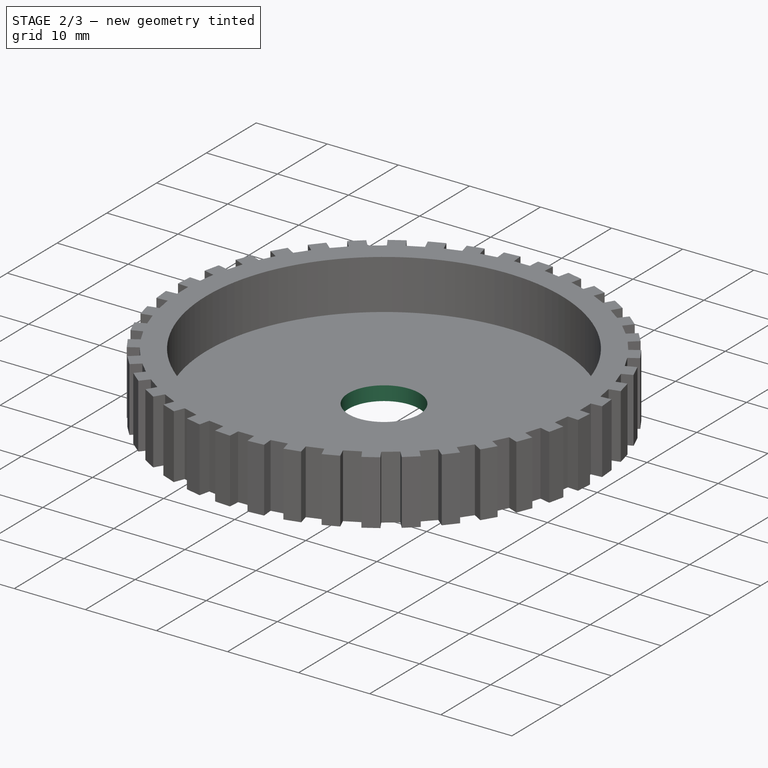
[diagram: stage 2 of 3 — iso view after this stage's code; geometry added in this stage tinted green]
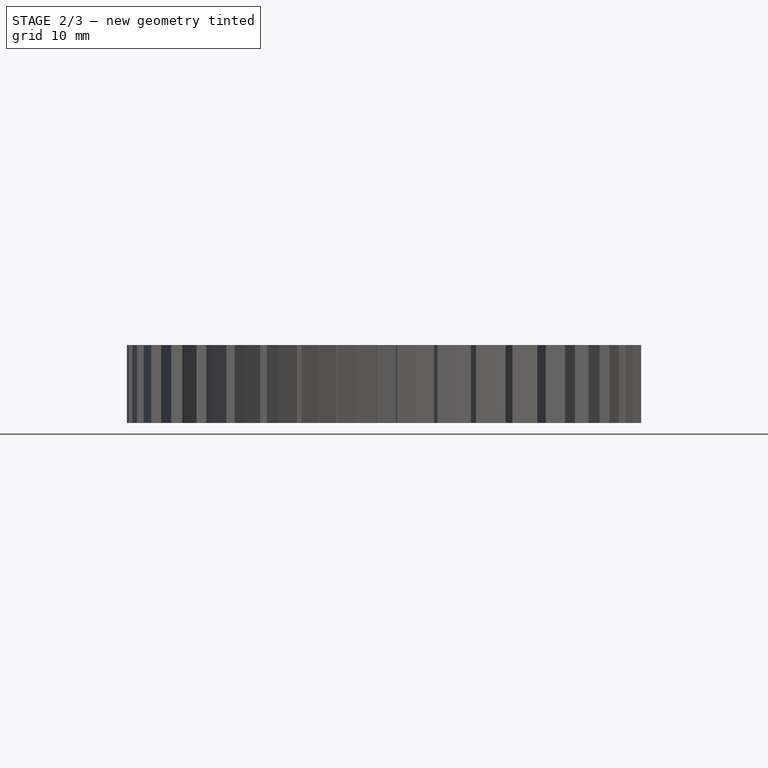
[diagram: stage 2 of 3 — front view after this stage's code; geometry added in this stage tinted green]
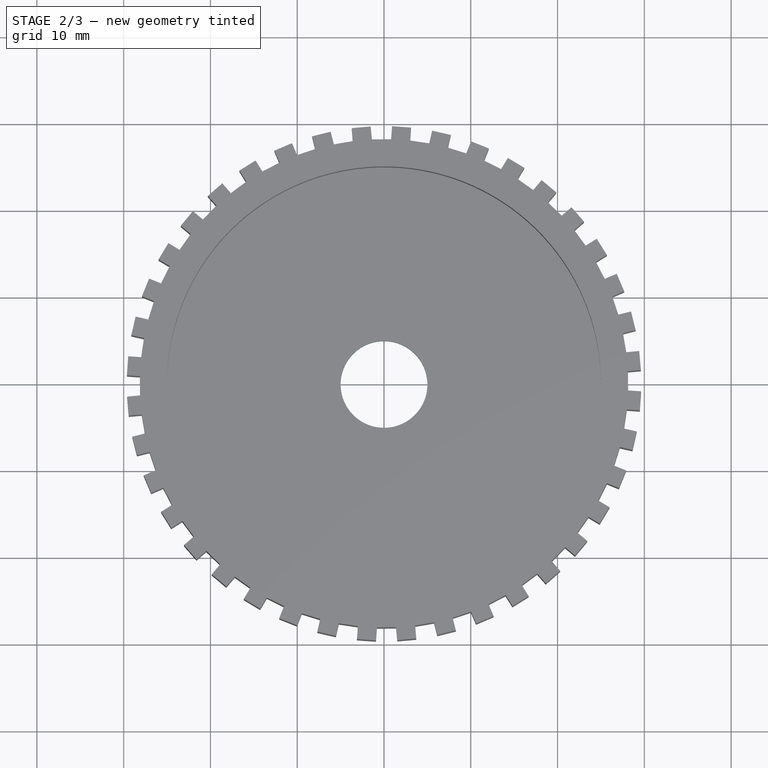
[diagram: stage 2 of 3 — top view after this stage's code; geometry added in this stage tinted green]
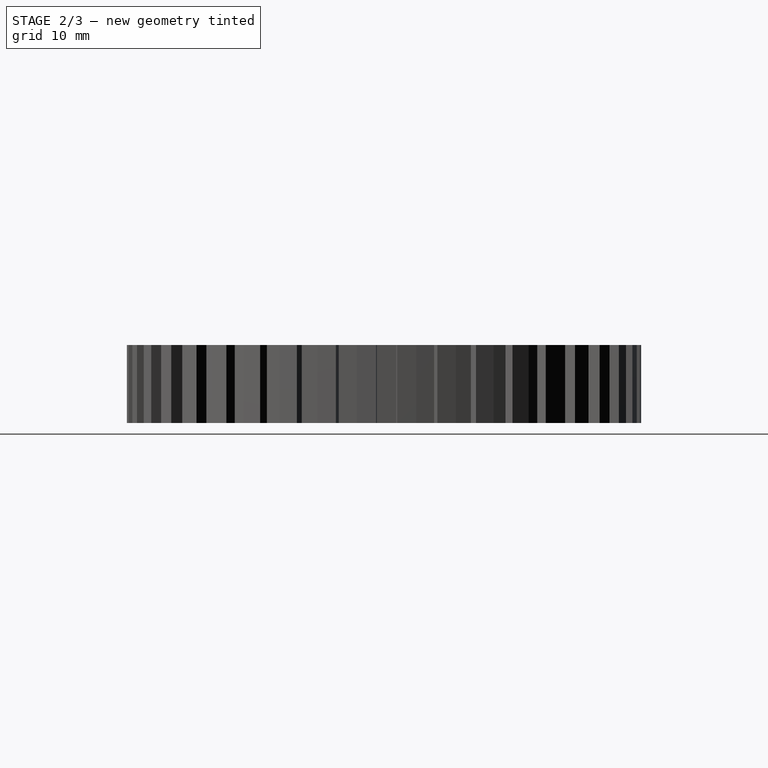
[diagram: stage 2 of 3 — right view after this stage's code; geometry added in this stage tinted green]
FEATURE [Sketcher::SketchObject] Sketch002
  FullyConstrained = true
  MapMode = 5
  Placement = pos=(0,0,2) rot=(0,0,1;0rad)
  Support = -> [Pocket]
  sketch-geometry (1):
    g0: Circle CenterX=0 CenterY=0 CenterZ=0 NormalX=0 NormalY=0 NormalZ=1 AngleXU=0 Radius=5
  constraints (2):
    c: Coincident(g0,g-1)
    c: Diameter(g0) = 10
FEATURE [PartDesign::Pocket] Pocket001
  BaseFeature = -> Pocket
  Length = 5
  Length2 = 100
  Profile = -> Sketch002
  Type = 1
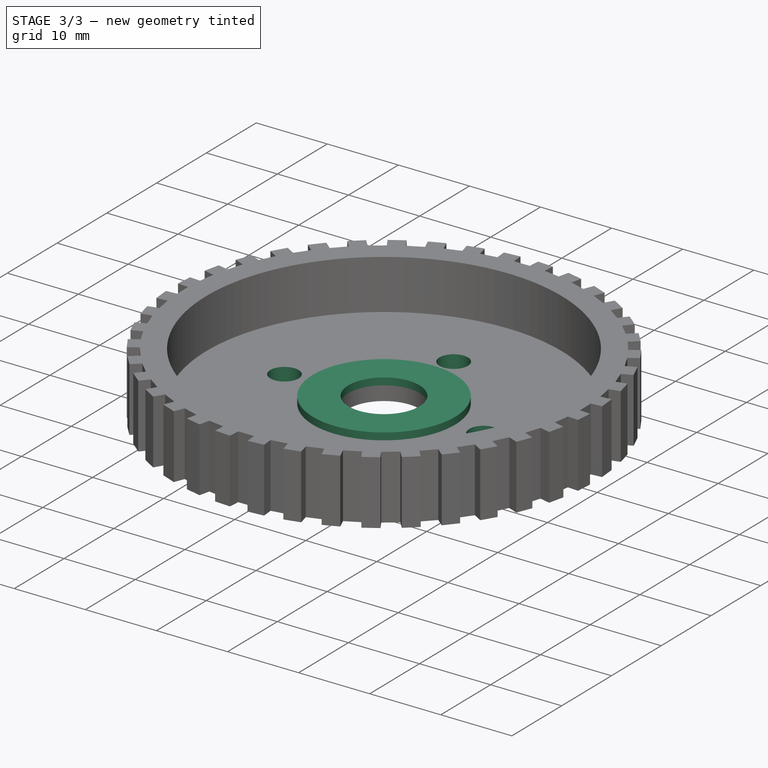
[diagram: stage 3 of 3 — iso view after this stage's code; geometry added in this stage tinted green]
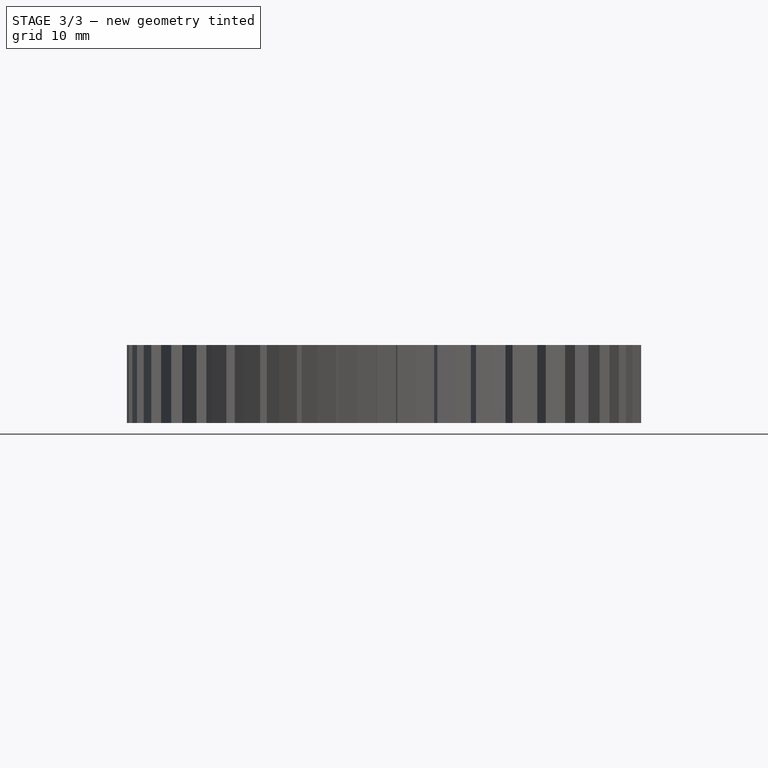
[diagram: stage 3 of 3 — front view after this stage's code; geometry added in this stage tinted green]
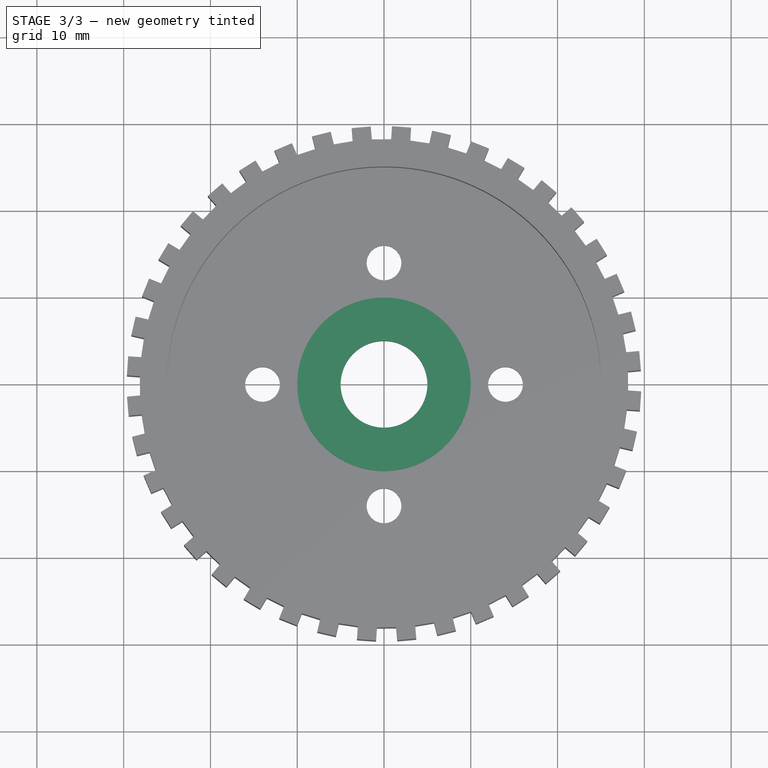
[diagram: stage 3 of 3 — top view after this stage's code; geometry added in this stage tinted green]
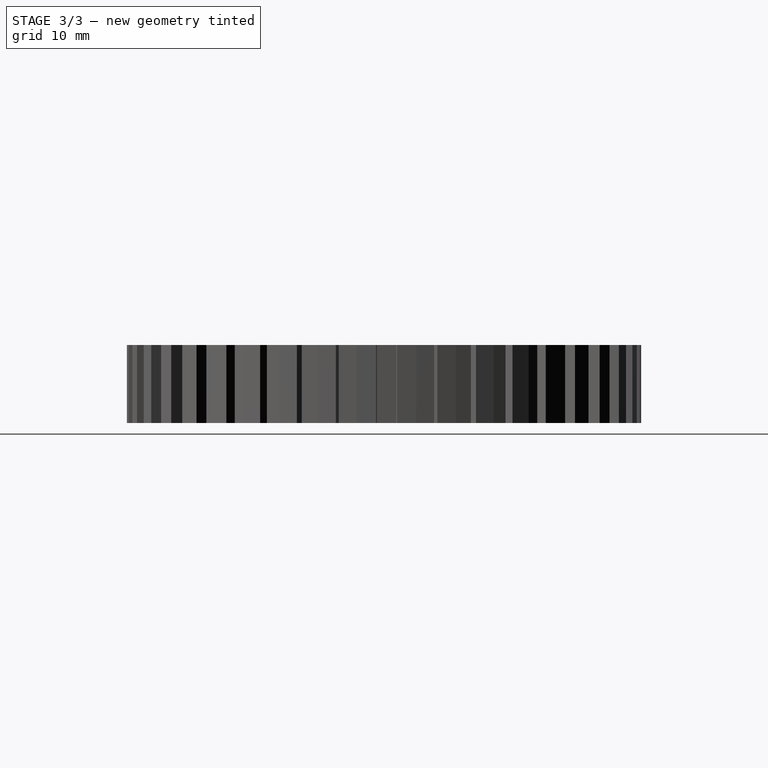
[diagram: stage 3 of 3 — right view after this stage's code; geometry added in this stage tinted green]
FEATURE [Sketcher::SketchObject] Sketch003
  FullyConstrained = false
  MapMode = 5
  Placement = pos=(0,0,2) rot=(0,0,1;0rad)
  Support = -> [Pocket001]
  sketch-geometry (9):
    g0: LineSegment StartX=0 StartY=0 StartZ=0 EndX=-7.35e-14 EndY=14 EndZ=0
    g1: LineSegment StartX=0 StartY=0 StartZ=0 EndX=14 EndY=6.1e-15 EndZ=0
    g2: LineSegment StartX=0 StartY=0 StartZ=0 EndX=0 EndY=-14 EndZ=0
    g3: LineSegment StartX=0 StartY=0 StartZ=0 EndX=-14 EndY=0 EndZ=0
    g4: Circle CenterX=0 CenterY=0 CenterZ=0 NormalX=0 NormalY=0 NormalZ=1 AngleXU=0 Radius=14
    g5: Circle CenterX=-7.35e-14 CenterY=14 CenterZ=0 NormalX=0 NormalY=0 NormalZ=1 AngleXU=0 Radius=2
    g6: Circle CenterX=14 CenterY=6.1e-15 CenterZ=0 NormalX=0 NormalY=0 NormalZ=1 AngleXU=0 Radius=2
    g7: Circle CenterX=0 CenterY=-14 CenterZ=0 NormalX=0 NormalY=0 NormalZ=1 AngleXU=0 Radius=2
    g8: Circle CenterX=-14 CenterY=0 CenterZ=0 NormalX=0 NormalY=0 NormalZ=1 AngleXU=0 Radius=2
  constraints (18):
    c: Coincident(g0,g-1)
    c: Coincident(g1,g0)
    c: Coincident(g2,g0)
    c: Coincident(g3,g0)
    c: Coincident(g4,g0)
    c: Diameter(g4) = 28
    c: PointOnObject(g1,g4)
    c: PointOnObject(g0,g4)
    c: PointOnObject(g3,g4)
    c: PointOnObject(g2,g4)
    c: Coincident(g5,g0)
    c: Coincident(g6,g1)
    c: Coincident(g7,g2)
    c: Coincident(g8,g3)
    c: Equal(g5,g6)
    c: Equal(g6,g7)
    c: Equal(g7,g8)
    c: Diameter(g6) = 4
FEATURE [PartDesign::Pocket] Pocket002
  BaseFeature = -> Pocket001
  Length = 5
  Length2 = 100
  Profile = -> Sketch003
  Type = 1
FEATURE [Sketcher::SketchObject] Sketch004
  FullyConstrained = true
  MapMode = 5
  Placement = pos=(0,0,2) rot=(0,0,1;0rad)
  Support = -> [Pocket002]
  sketch-geometry (2):
    g0: Circle CenterX=0 CenterY=0 CenterZ=0 NormalX=0 NormalY=0 NormalZ=1 AngleXU=0 Radius=5
    g1: Circle CenterX=0 CenterY=0 CenterZ=0 NormalX=0 NormalY=0 NormalZ=1 AngleXU=0 Radius=10
  constraints (4):
    c: Coincident(g0,g-1)
    c: Coincident(g1,g0)
    c: Diameter(g0) = 10
    c: Diameter(g1) = 20
FEATURE [PartDesign::Pad] Pad001
  BaseFeature = -> Pocket002
  Direction = (1,1,1)
  Length = 1
  Length2 = 100
  Profile = -> Sketch004
  Type = 0
FEATURE [PartDesign::Body] Body
  Group = -> [Sketch,Pad,Sketch001,Pocket,Sketch002,Pocket001,Sketch003,Pocket002,Sketch004,Pad001]
  Origin = -> Origin
  Tip = -> Pad001
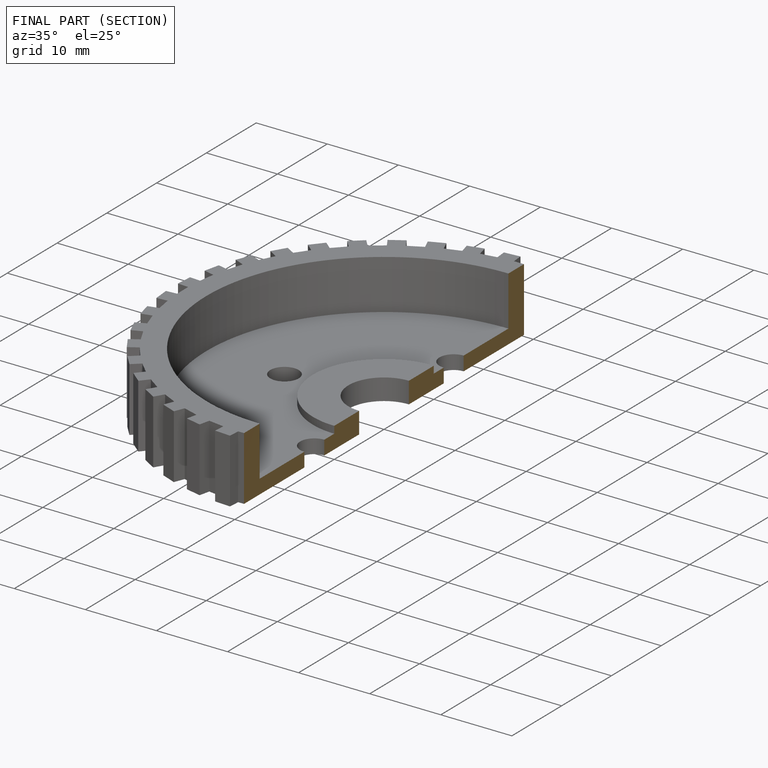
[diagram: finished part — half-section view (interior)]
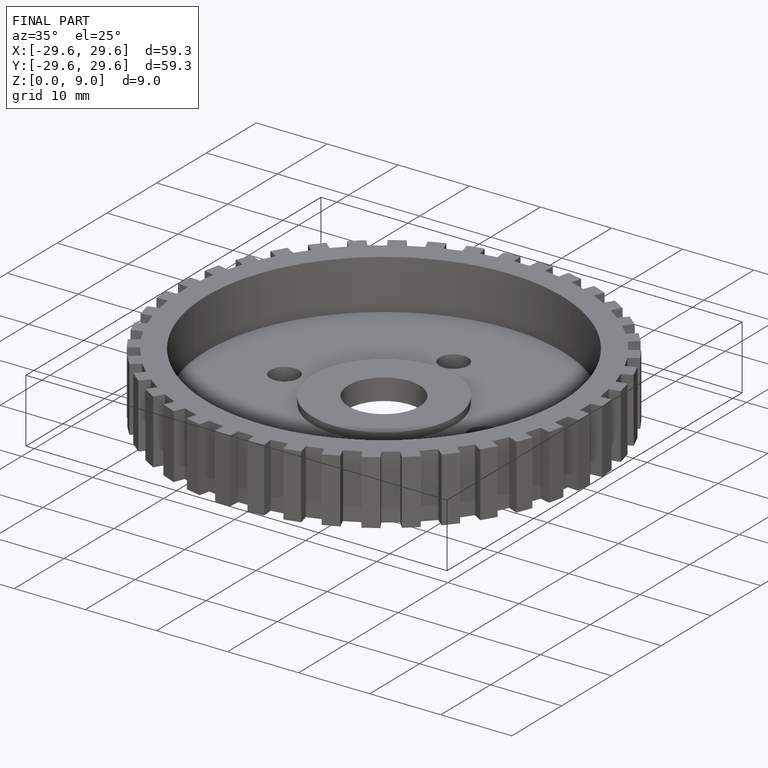
[diagram: finished part — iso view with bounding-box wireframe]
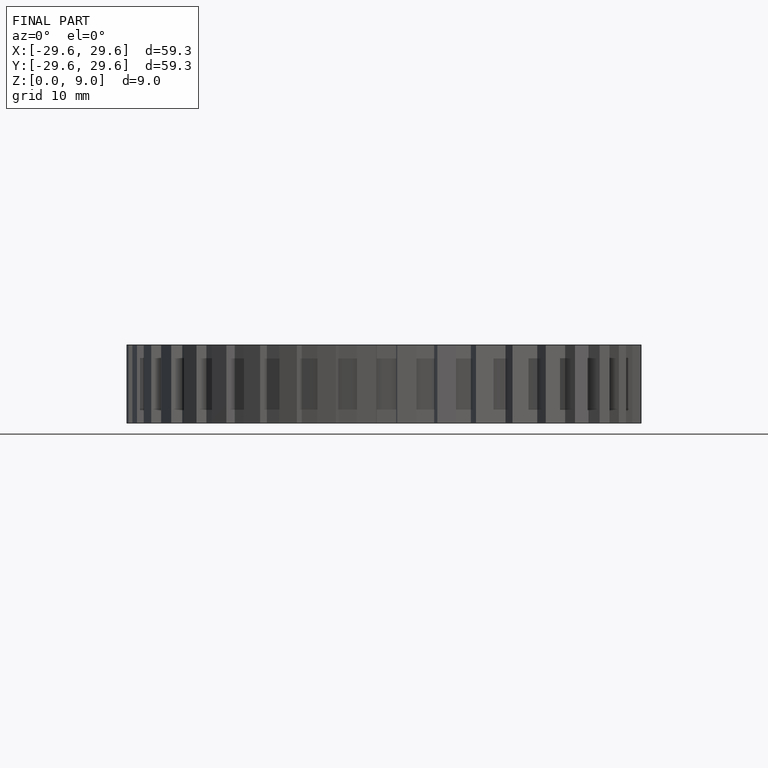
[diagram: finished part — front view with bounding-box wireframe]
